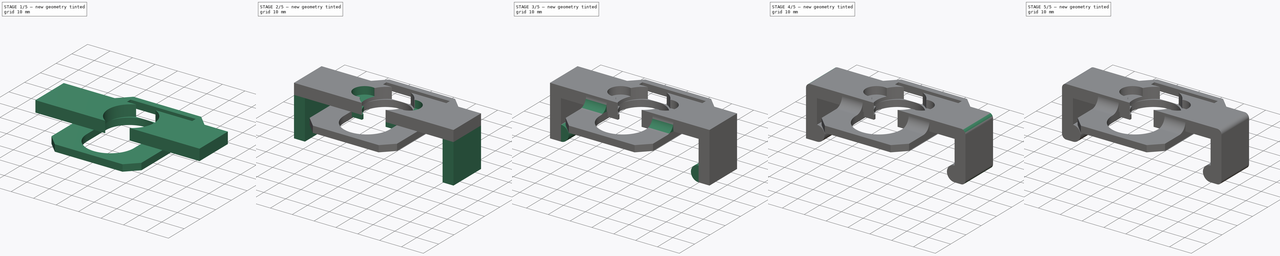
[diagram: build sequence overview — one tinted view per stage of 5, left to right]
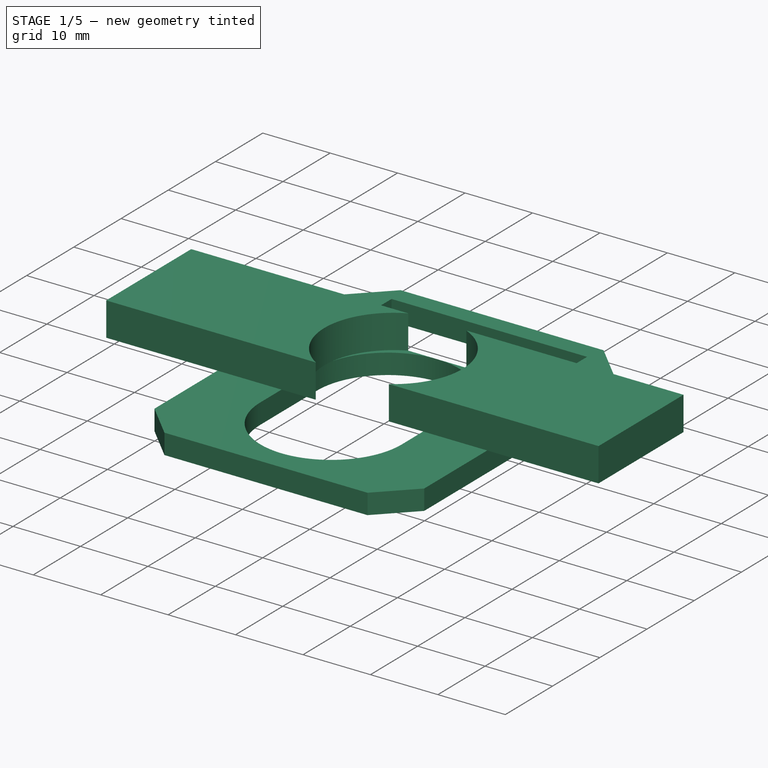
[diagram: stage 1 of 5 — iso view after this stage's code; geometry added in this stage tinted green]
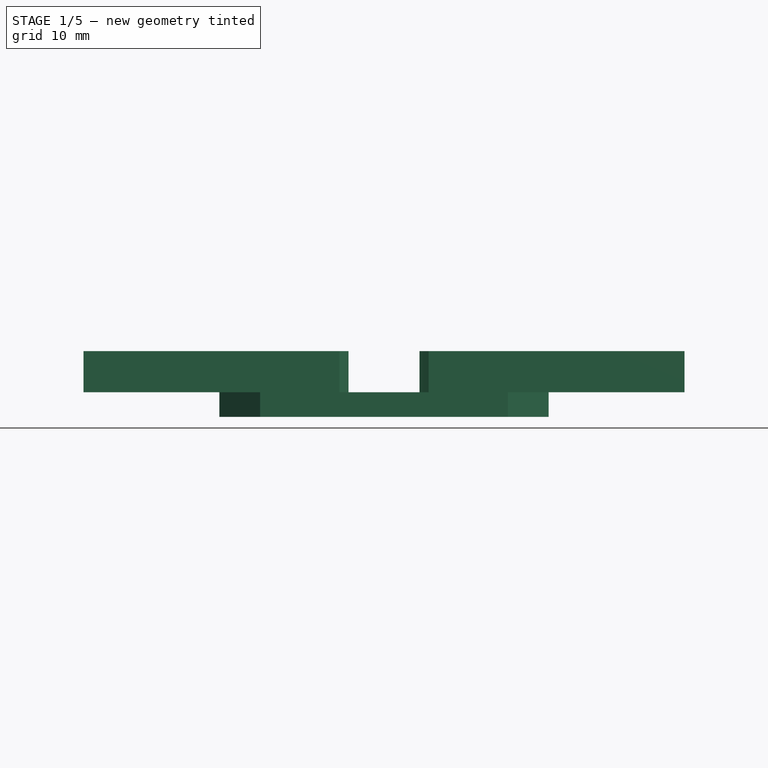
[diagram: stage 1 of 5 — front view after this stage's code; geometry added in this stage tinted green]
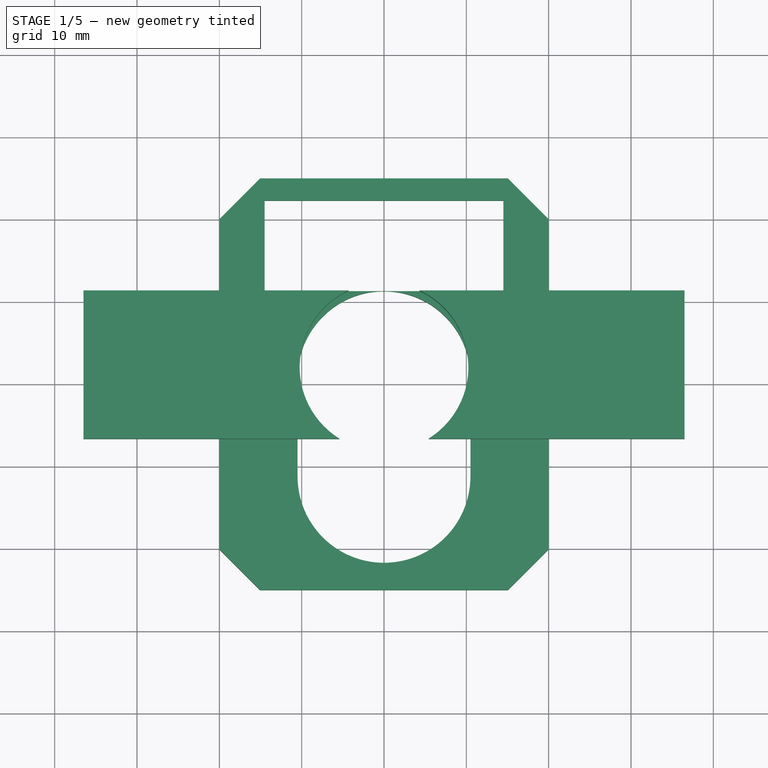
[diagram: stage 1 of 5 — top view after this stage's code; geometry added in this stage tinted green]
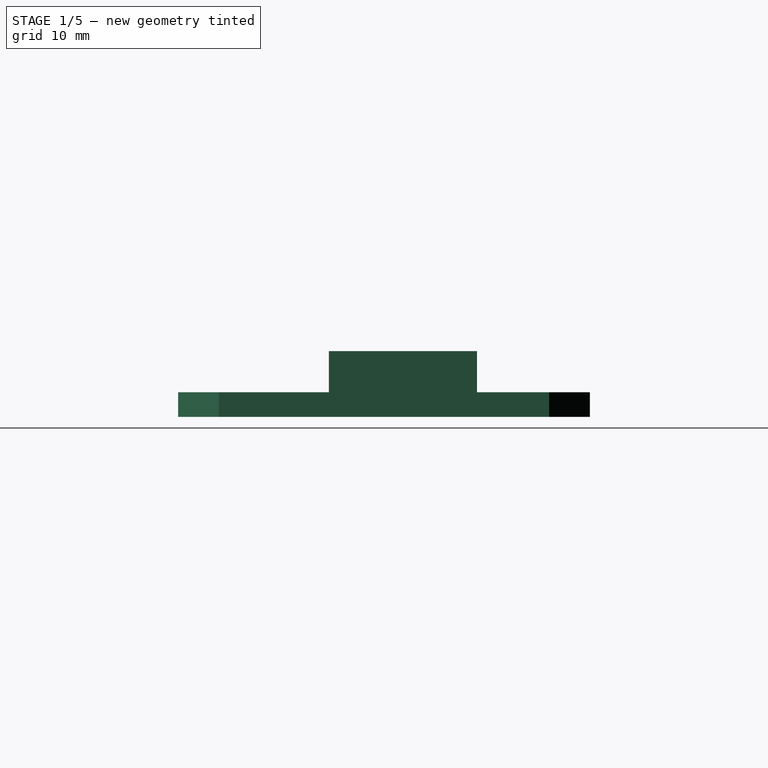
[diagram: stage 1 of 5 — right view after this stage's code; geometry added in this stage tinted green]
FCSTD DOCUMENT  (FreeCAD 0.20R29177 (Git))
Label: ti_lens
License: All rights reserved
LicenseURL: http://en.wikipedia.org/wiki/All_rights_reserved
objects: PartDesign::Fillet×8, Sketcher::SketchObject×7, PartDesign::Pad×5, PartDesign::Pocket×2, PartDesign::Body×1
note: 38 computed .brp shape members not serialized (recipe doc carries the construction recipe); baked Part::Feature solids carry a one-line shape summary decoded from their .brp

FEATURE [Sketcher::SketchObject] Sketch
  FullyConstrained = true
  MapMode = 5
  Support = -> [XY_Plane]
  sketch-geometry (8):
    g0: LineSegment StartX=-20 StartY=20.0503 StartZ=0 EndX=-15.0503 EndY=25 EndZ=0
    g1: LineSegment StartX=-15.0503 StartY=25 StartZ=0 EndX=15.0503 EndY=25 EndZ=0
    g2: LineSegment StartX=15.0503 StartY=25 StartZ=0 EndX=20 EndY=20.0503 EndZ=0
    g3: LineSegment StartX=20 StartY=20.0503 StartZ=0 EndX=20 EndY=-20.0503 EndZ=0
    g4: LineSegment StartX=20 StartY=-20.0503 StartZ=0 EndX=15.0503 EndY=-25 EndZ=0
    g5: LineSegment StartX=15.0503 StartY=-25 StartZ=0 EndX=-15.0503 EndY=-25 EndZ=0
    g6: LineSegment StartX=-15.0503 StartY=-25 StartZ=0 EndX=-20 EndY=-20.0503 EndZ=0
    g7: LineSegment StartX=-20 StartY=-20.0503 StartZ=0 EndX=-20 EndY=20.0503 EndZ=0
  constraints (22):
    c: Coincident(g0,g1)
    c: Horizontal(g1)
    c: Coincident(g1,g2)
    c: Coincident(g2,g3)
    c: Vertical(g3)
    c: Coincident(g3,g4)
    c: Coincident(g4,g5)
    c: Horizontal(g5)
    c: Coincident(g5,g6)
    c: Coincident(g6,g7)
    c: Coincident(g7,g0)
    c: Vertical(g7)
    c: Symmetric(g0,g2,g-2)
    c: Angle(g0) = 0.785398
    c: Equal(g0,g2)
    c: Equal(g0,g6)
    c: Equal(g0,g4)
    c: Angle(g6) = 2.35619
    c: Symmetric(g4,g1,g-1)
    c: DistanceX(g0,g2) = 40
    c: DistanceY(g4,g1) = 50
    c: Distance(g0) = 7
FEATURE [PartDesign::Pad] Pad
  Direction = (0,0,1)
  Length = 3
  Length2 = 10
  Profile = -> Sketch
  ReferenceAxis = -> Sketch [N_Axis]
  Type = 0
FEATURE [Sketcher::SketchObject] Sketch001
  ExternalGeometry = -> [Pad]
  FullyConstrained = true
  MapMode = 5
  Placement = pos=(0,0,3) rot=(0,0,1;0rad)
  Support = -> [Pad]
  sketch-geometry (8):
    g0: ArcOfCircle CenterX=0 CenterY=0.8 CenterZ=0 NormalX=0 NormalY=0 NormalZ=1 AngleXU=0 Radius=10.5 StartAngle=0 EndAngle=3.14159
    g1: ArcOfCircle CenterX=0 CenterY=-11.2 CenterZ=0 NormalX=0 NormalY=0 NormalZ=1 AngleXU=0 Radius=10.5 StartAngle=3.14159 EndAngle=6.28319
    g2: LineSegment StartX=-10.5 StartY=0.8 StartZ=0 EndX=-10.5 EndY=-11.2 EndZ=0
    g3: LineSegment StartX=10.5 StartY=-11.2 StartZ=0 EndX=10.5 EndY=0.8 EndZ=0
    g4: LineSegment StartX=-14.5 StartY=22.3 StartZ=0 EndX=14.5 EndY=22.3 EndZ=0
    g5: LineSegment StartX=14.5 StartY=22.3 StartZ=0 EndX=14.5 EndY=11.3 EndZ=0
    g6: LineSegment StartX=14.5 StartY=11.3 StartZ=0 EndX=-14.5 EndY=11.3 EndZ=0
    g7: LineSegment StartX=-14.5 StartY=11.3 StartZ=0 EndX=-14.5 EndY=22.3 EndZ=0
  constraints (21):
    c: Tangent(g0,g2) = -1.5708
    c: Tangent(g2,g1) = -1.5708
    c: Tangent(g1,g3) = -1.5708
    c: Tangent(g3,g0) = -1.5708
    c: Equal(g0,g1)
    c: PointOnObject(g0,g-2)
    c: PointOnObject(g1,g-2)
    c: DistanceX(g0,g0) = 21
    c: DistanceY(g1,g0) = 12
    c: DistanceY(g-3,g1) = 13.8
    c: Coincident(g4,g5)
    c: Coincident(g5,g6)
    c: Coincident(g6,g7)
    c: Coincident(g7,g4)
    c: Horizontal(g6)
    c: Vertical(g5)
    c: Vertical(g7)
    c: Symmetric(g4,g4,g-2)
    c: DistanceY(g5,g5) = 11
    c: Tangent(g0,g6)
    c: DistanceX(g4,g4) = 29
FEATURE [PartDesign::Pocket] Pocket
  BaseFeature = -> Pad
  Direction = (0,0,-1)
  Length = 3
  Length2 = 5
  Profile = -> Sketch001
  ReferenceAxis = -> Sketch001 [N_Axis]
  Type = 0
FEATURE [Sketcher::SketchObject] Sketch002
  ExternalGeometry = -> [Pocket]
  FullyConstrained = true
  MapMode = 5
  Placement = pos=(0,0,3) rot=(0,0,1;0rad)
  Support = -> [Pocket]
  sketch-geometry (8):
    g0: LineSegment StartX=4.30958 StartY=11.3 StartZ=0 EndX=36.5 EndY=11.3 EndZ=0
    g1: LineSegment StartX=36.5 StartY=11.3 StartZ=0 EndX=36.5 EndY=-6.7 EndZ=0
    g2: LineSegment StartX=36.5 StartY=-6.7 StartZ=0 EndX=5.41964 EndY=-6.7 EndZ=0
    g3: LineSegment StartX=-4.30958 StartY=11.3 StartZ=0 EndX=-36.5 EndY=11.3 EndZ=0
    g4: LineSegment StartX=-36.5 StartY=11.3 StartZ=0 EndX=-36.5 EndY=-6.7 EndZ=0
    g5: LineSegment StartX=-36.5 StartY=-6.7 StartZ=0 EndX=-5.41964 EndY=-6.7 EndZ=0
    g6: ArcOfCircle CenterX=0 CenterY=2 CenterZ=0 NormalX=0 NormalY=0 NormalZ=1 AngleXU=0 Radius=10.25 StartAngle=5.26951 EndAngle=7.42004
    g7: ArcOfCircle CenterX=0 CenterY=2 CenterZ=0 NormalX=0 NormalY=0 NormalZ=1 AngleXU=0 Radius=10.25 StartAngle=2.00473 EndAngle=4.15527
  constraints (24):
    c: PointOnObject(g0,g-4)
    c: Horizontal(g0)
    c: Coincident(g0,g1)
    c: Vertical(g1)
    c: Coincident(g1,g2)
    c: Horizontal(g2)
    c: PointOnObject(g3,g-4)
    c: Coincident(g3,g4)
    c: Vertical(g4)
    c: Coincident(g4,g5)
    c: Horizontal(g5)
    c: Symmetric(g3,g0,g-2)
    c: Equal(g1,g4)
    c: DistanceX(g3,g0) = 73
    c: DistanceY(g1,g1) = 18
    c: PointOnObject(g6,g-2)
    c: Coincident(g6,g0)
    c: Coincident(g6,g2)
    c: Coincident(g7,g6)
    c: Coincident(g7,g3)
    c: Coincident(g7,g5)
    c: DistanceY(g-3,g6) = 27
    c: Equal(g6,g7)
    c: Diameter(g6) = 20.5
FEATURE [PartDesign::Pad] Pad001
  BaseFeature = -> Pocket
  Direction = (0,0,1)
  Length = 5
  Length2 = 10
  Profile = -> Sketch002
  ReferenceAxis = -> Sketch002 [N_Axis]
  Type = 0
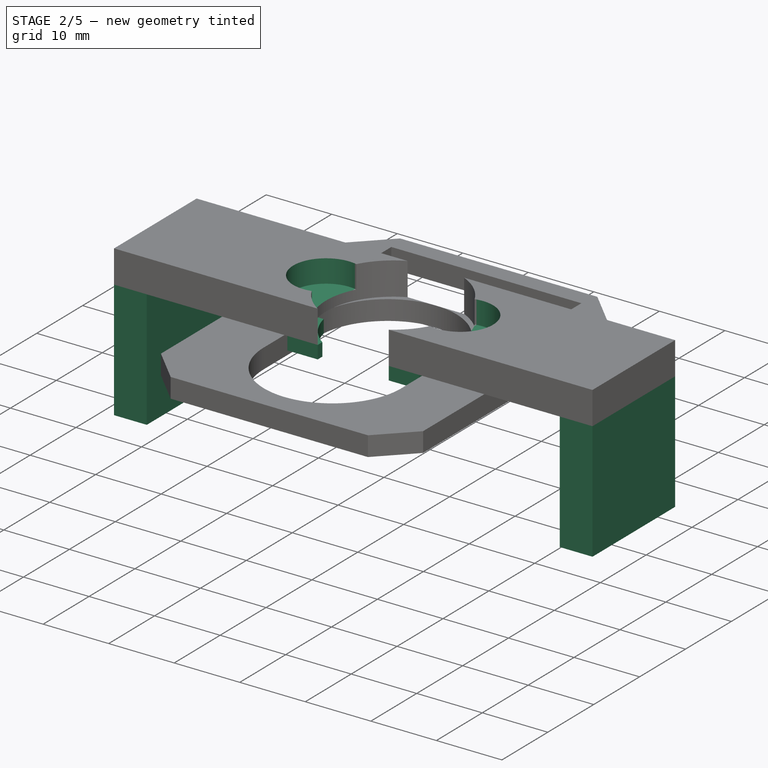
[diagram: stage 2 of 5 — iso view after this stage's code; geometry added in this stage tinted green]
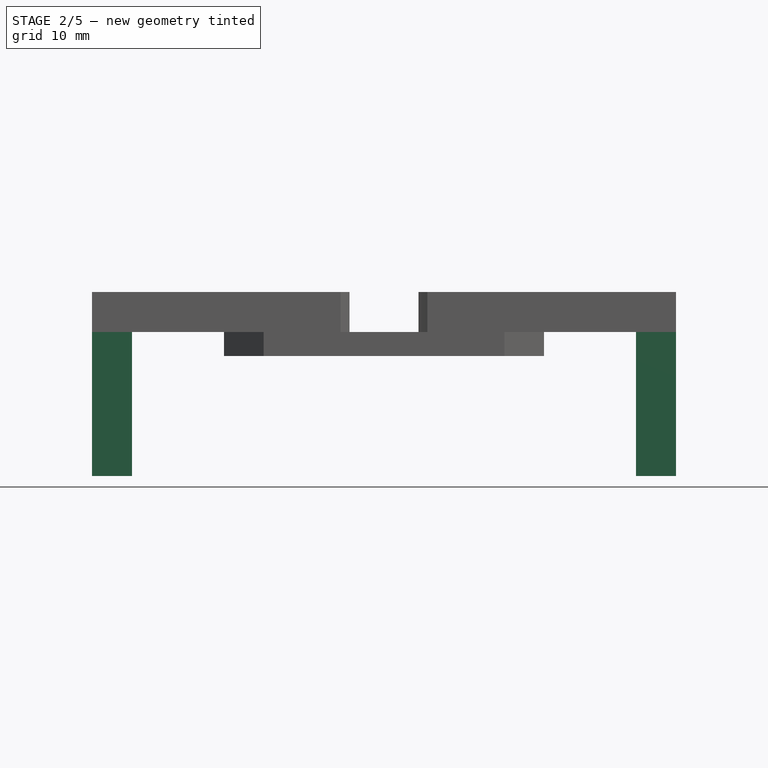
[diagram: stage 2 of 5 — front view after this stage's code; geometry added in this stage tinted green]
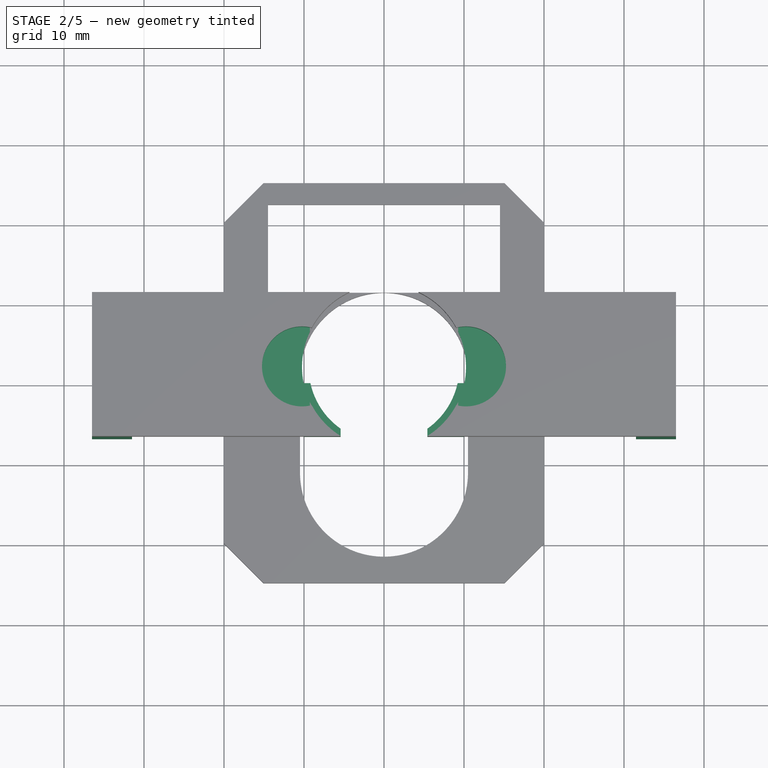
[diagram: stage 2 of 5 — top view after this stage's code; geometry added in this stage tinted green]
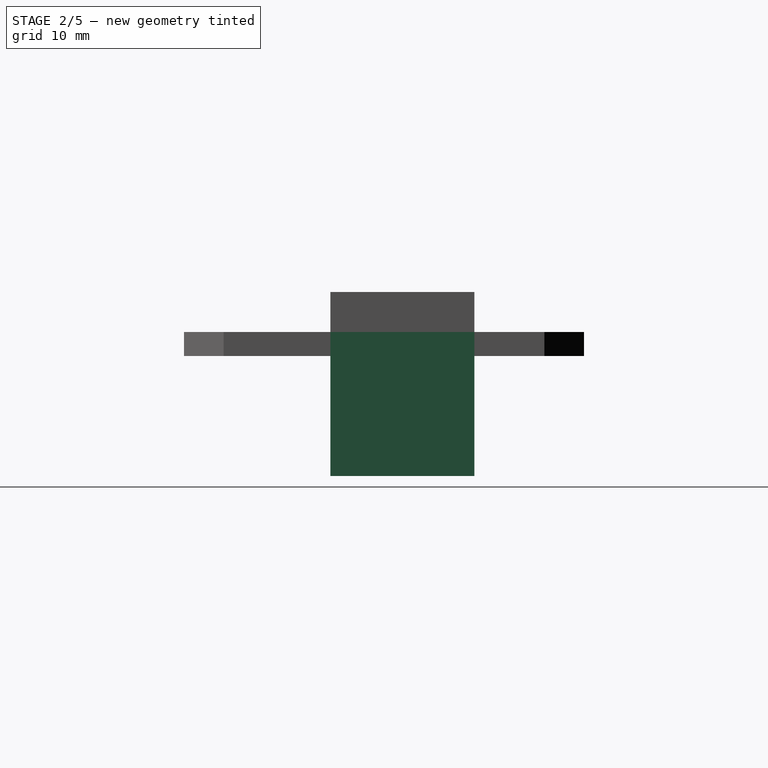
[diagram: stage 2 of 5 — right view after this stage's code; geometry added in this stage tinted green]
FEATURE [Sketcher::SketchObject] Sketch003
  ExternalGeometry = -> [Pad001]
  FullyConstrained = true
  MapMode = 5
  Placement = pos=(0,0,3) rot=(1,0,0;3.14159rad)
  Support = -> [Pad001]
  sketch-geometry (8):
    g0: LineSegment StartX=-36.5 StartY=6.7 StartZ=0 EndX=-31.5 EndY=6.7 EndZ=0
    g1: LineSegment StartX=-31.5 StartY=6.7 StartZ=0 EndX=-31.5 EndY=-11.3 EndZ=0
    g2: LineSegment StartX=-31.5 StartY=-11.3 StartZ=0 EndX=-36.5 EndY=-11.3 EndZ=0
    g3: LineSegment StartX=-36.5 StartY=-11.3 StartZ=0 EndX=-36.5 EndY=6.7 EndZ=0
    g4: LineSegment StartX=36.5 StartY=6.7 StartZ=0 EndX=31.5 EndY=6.7 EndZ=0
    g5: LineSegment StartX=31.5 StartY=6.7 StartZ=0 EndX=31.5 EndY=-11.3 EndZ=0
    g6: LineSegment StartX=31.5 StartY=-11.3 StartZ=0 EndX=36.5 EndY=-11.3 EndZ=0
    g7: LineSegment StartX=36.5 StartY=-11.3 StartZ=0 EndX=36.5 EndY=6.7 EndZ=0
  constraints (22):
    c: Coincident(g0,g1)
    c: Coincident(g1,g2)
    c: Coincident(g2,g3)
    c: Coincident(g3,g0)
    c: Horizontal(g0)
    c: Horizontal(g2)
    c: Vertical(g1)
    c: Vertical(g3)
    c: Coincident(g0,g-3)
    c: PointOnObject(g1,g-5)
    c: Coincident(g4,g5)
    c: Coincident(g5,g6)
    c: Coincident(g6,g7)
    c: Coincident(g7,g4)
    c: Horizontal(g4)
    c: Horizontal(g6)
    c: Vertical(g5)
    c: Vertical(g7)
    c: Coincident(g4,g-4)
    c: PointOnObject(g5,g-6)
    c: DistanceX(g4,g4) = 5
    c: Equal(g0,g4)
FEATURE [PartDesign::Pad] Pad002
  BaseFeature = -> Pad001
  Direction = (0,0,-1)
  Length = 18
  Length2 = 10
  Profile = -> Sketch003
  ReferenceAxis = -> Sketch003 [N_Axis]
  Type = 0
FEATURE [Sketcher::SketchObject] Sketch004
  ExternalGeometry = -> [Pad002]
  FullyConstrained = true
  MapMode = 5
  Placement = pos=(0,0,3) rot=(1,0,0;3.14159rad)
  Support = -> [Pad002]
  sketch-geometry (10):
    g0: ArcOfCircle CenterX=0 CenterY=-2 CenterZ=0 NormalX=0 NormalY=0 NormalZ=1 AngleXU=0 Radius=9.41608 StartAngle=0.214033 EndAngle=0.957492
    g1: ArcOfCircle CenterX=0 CenterY=-2 CenterZ=0 NormalX=0 NormalY=0 NormalZ=1 AngleXU=0 Radius=9.41608 StartAngle=2.1841 EndAngle=2.92756
    g2: LineSegment StartX=5.41964 StartY=5.7 StartZ=0 EndX=5.41964 EndY=6.7 EndZ=0
    g3: LineSegment StartX=-5.41964 StartY=5.7 StartZ=0 EndX=-5.41964 EndY=6.7 EndZ=0
    g4: LineSegment StartX=5.41964 StartY=6.7 StartZ=0 EndX=10.053 EndY=6.7 EndZ=0
    g5: LineSegment StartX=10.053 StartY=0 StartZ=0 EndX=10.053 EndY=6.7 EndZ=0
    g6: LineSegment StartX=9.20122 StartY=0 StartZ=0 EndX=10.053 EndY=0 EndZ=0
    g7: LineSegment StartX=-5.41964 StartY=6.7 StartZ=0 EndX=-10.053 EndY=6.7 EndZ=0
    g8: LineSegment StartX=-10.053 StartY=6.7 StartZ=0 EndX=-10.053 EndY=-9e-16 EndZ=0
    g9: LineSegment StartX=-10.053 StartY=-9e-16 StartZ=0 EndX=-9.20122 EndY=-9e-16 EndZ=0
  constraints (27):
    c: Coincident(g0,g-3)
    c: PointOnObject(g0,g-1)
    c: Coincident(g1,g0)
    c: PointOnObject(g1,g-1)
    c: Symmetric(g0,g1,g-2)
    c: DistanceY(g0,g-3) = 1
    c: Vertical(g0,g-3)
    c: Coincident(g2,g0)
    c: Coincident(g2,g-3)
    c: Coincident(g3,g1)
    c: Coincident(g3,g-4)
    c: Coincident(g4,g2)
    c: Horizontal(g4)
    c: PointOnObject(g5,g-3)
    c: Coincident(g5,g4)
    c: Vertical(g5)
    c: Coincident(g6,g0)
    c: Coincident(g6,g5)
    c: Horizontal(g6)
    c: Coincident(g7,g3)
    c: Horizontal(g7)
    c: Coincident(g8,g7)
    c: PointOnObject(g8,g-4)
    c: Vertical(g8)
    c: Coincident(g9,g8)
    c: Coincident(g9,g1)
    c: Horizontal(g9)
FEATURE [PartDesign::Pad] Pad003
  BaseFeature = -> Pad002
  Direction = (0,0,-1)
  Length = 2
  Length2 = 10
  Profile = -> Sketch004
  ReferenceAxis = -> Sketch004 [N_Axis]
  Type = 0
FEATURE [Sketcher::SketchObject] Sketch005
  ExternalGeometry = -> [Pad003]
  FullyConstrained = true
  MapMode = 5
  Placement = pos=(0,0,8) rot=(0,0,1;0rad)
  Support = -> [Pad003]
  sketch-geometry (4):
    g0: ArcOfCircle CenterX=-10.25 CenterY=2 CenterZ=0 NormalX=0 NormalY=0 NormalZ=1 AngleXU=0 Radius=5 StartAngle=1.32441 EndAngle=4.95878
    g1: ArcOfCircle CenterX=10.25 CenterY=2 CenterZ=0 NormalX=0 NormalY=0 NormalZ=1 AngleXU=0 Radius=5 StartAngle=4.466 EndAngle=8.10037
    g2: ArcOfCircle CenterX=0 CenterY=2 CenterZ=0 NormalX=0 NormalY=0 NormalZ=1 AngleXU=0 Radius=10.25 StartAngle=5.79041 EndAngle=6.77596
    g3: ArcOfCircle CenterX=0 CenterY=2 CenterZ=0 NormalX=0 NormalY=0 NormalZ=1 AngleXU=0 Radius=10.25 StartAngle=2.64882 EndAngle=3.63437
  constraints (14):
    c: PointOnObject(g0,g-4)
    c: PointOnObject(g1,g-3)
    c: PointOnObject(g1,g-3)
    c: Horizontal(g1,g-4)
    c: Coincident(g2,g1)
    c: Coincident(g2,g1)
    c: Equal(g0,g1)
    c: Radius(g1) = 5
    c: PointOnObject(g0,g-4)
    c: Horizontal(g0,g-4)
    c: Coincident(g3,g-4)
    c: Coincident(g3,g0)
    c: Coincident(g3,g0)
    c: Coincident(g2,g3)
FEATURE [PartDesign::Pocket] Pocket001
  BaseFeature = -> Pad003
  Direction = (0,0,-1)
  Length = 3.5
  Length2 = 5
  Profile = -> Sketch005
  ReferenceAxis = -> Sketch005 [N_Axis]
  Type = 0
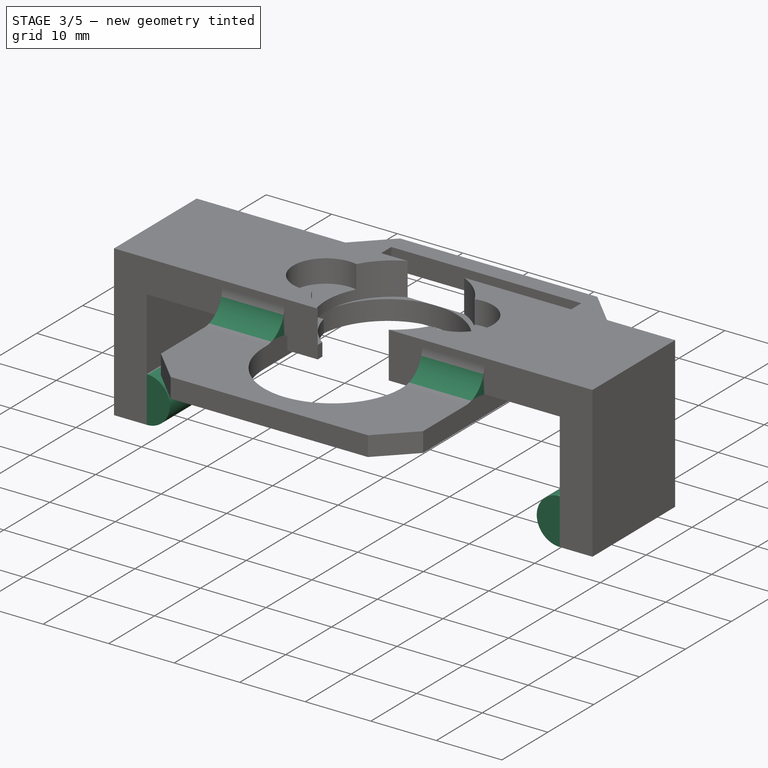
[diagram: stage 3 of 5 — iso view after this stage's code; geometry added in this stage tinted green]
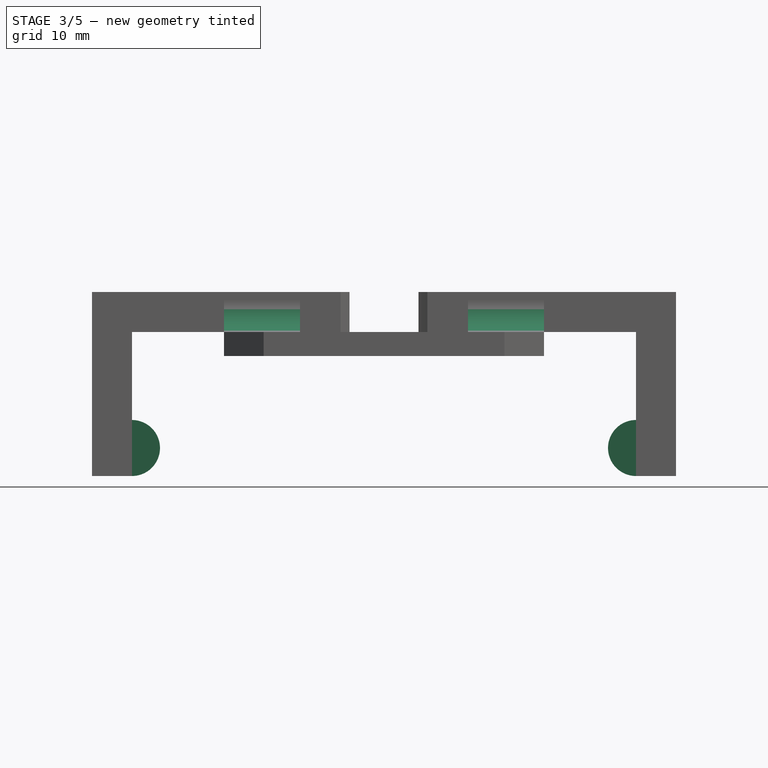
[diagram: stage 3 of 5 — front view after this stage's code; geometry added in this stage tinted green]
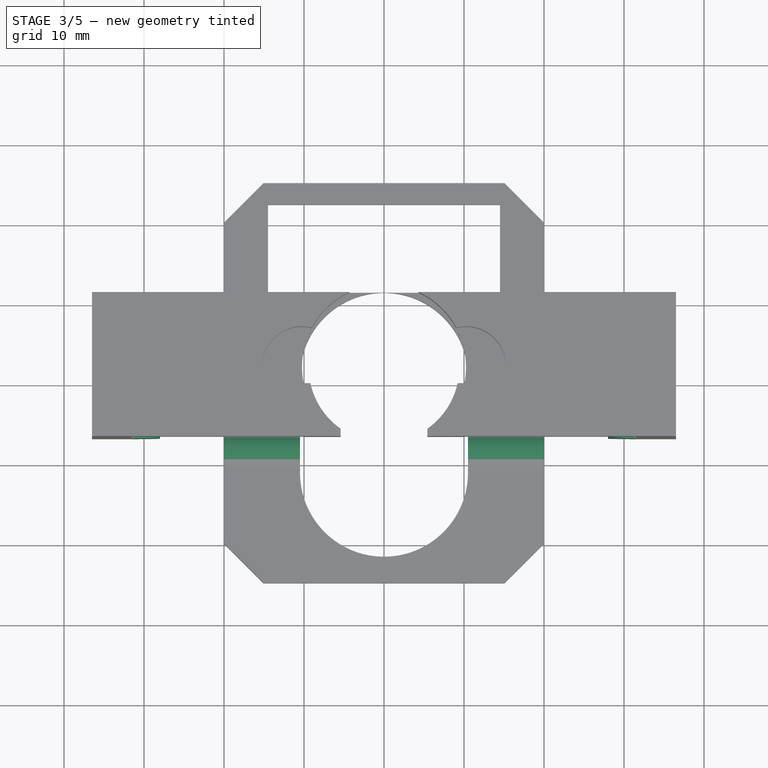
[diagram: stage 3 of 5 — top view after this stage's code; geometry added in this stage tinted green]
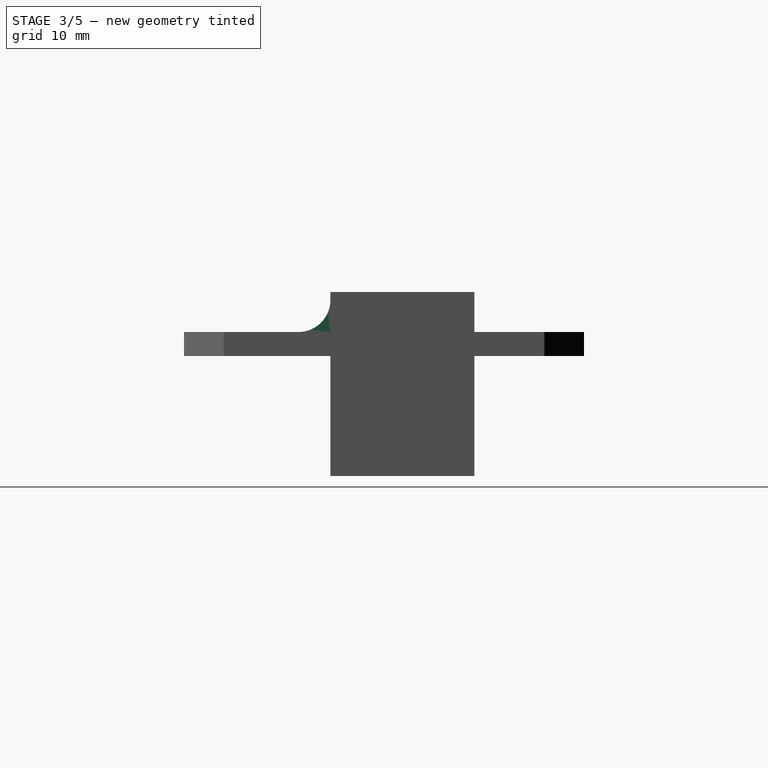
[diagram: stage 3 of 5 — right view after this stage's code; geometry added in this stage tinted green]
FEATURE [Sketcher::SketchObject] Sketch006
  ExternalGeometry = -> [Pocket001]
  FullyConstrained = true
  MapMode = 5
  Placement = pos=(0,11.3,0) rot=(0,0.707107,0.707107;3.14159rad)
  Support = -> [Pocket001]
  sketch-geometry (6):
    g0: ArcOfCircle CenterX=-31.5 CenterY=-11.5 CenterZ=0 NormalX=0 NormalY=0 NormalZ=1 AngleXU=0 Radius=3.5 StartAngle=4.71239 EndAngle=7.85398
    g1: ArcOfCircle CenterX=31.5 CenterY=-11.5 CenterZ=0 NormalX=0 NormalY=0 NormalZ=1 AngleXU=0 Radius=3.5 StartAngle=1.5708 EndAngle=4.71239
    g2: LineSegment StartX=-31.5 StartY=-15 StartZ=0 EndX=-33.5 EndY=-15 EndZ=0
    g3: LineSegment StartX=-33.5 StartY=-15 StartZ=0 EndX=-31.5 EndY=-8 EndZ=0
    g4: LineSegment StartX=31.5 StartY=-15 StartZ=0 EndX=33.5 EndY=-15 EndZ=0
    g5: LineSegment StartX=33.5 StartY=-15 StartZ=0 EndX=31.5 EndY=-8 EndZ=0
  constraints (17):
    c: PointOnObject(g0,g-5)
    c: PointOnObject(g0,g-5)
    c: PointOnObject(g1,g-6)
    c: PointOnObject(g1,g-6)
    c: PointOnObject(g1,g-6)
    c: Horizontal(g0,g1)
    c: Equal(g0,g1)
    c: Radius(g0) = 3.5
    c: Coincident(g0,g-5)
    c: Tangent(g0,g2) = 1.5708
    c: Coincident(g2,g3)
    c: Coincident(g3,g0)
    c: Tangent(g1,g4) = -1.5708
    c: Coincident(g4,g5)
    c: Coincident(g5,g1)
    c: Equal(g2,g4)
    c: DistanceX(g2,g2) = 2
FEATURE [PartDesign::Pad] Pad004
  BaseFeature = -> Pocket001
  Direction = (0,1,2e-16)
  Length = 18
  Length2 = 10
  Profile = -> Sketch006
  ReferenceAxis = -> Sketch006 [N_Axis]
  Reversed = true
  Type = 0
FEATURE [PartDesign::Fillet] Fillet
  Base = -> Pad004 [Edge39]
  BaseFeature = -> Pad004
  Radius = 4
  SupportTransform = false
  UseAllEdges = false
FEATURE [PartDesign::Fillet] Fillet001
  Base = -> Fillet [Edge7]
  BaseFeature = -> Fillet
  Radius = 4
  SupportTransform = false
  UseAllEdges = false
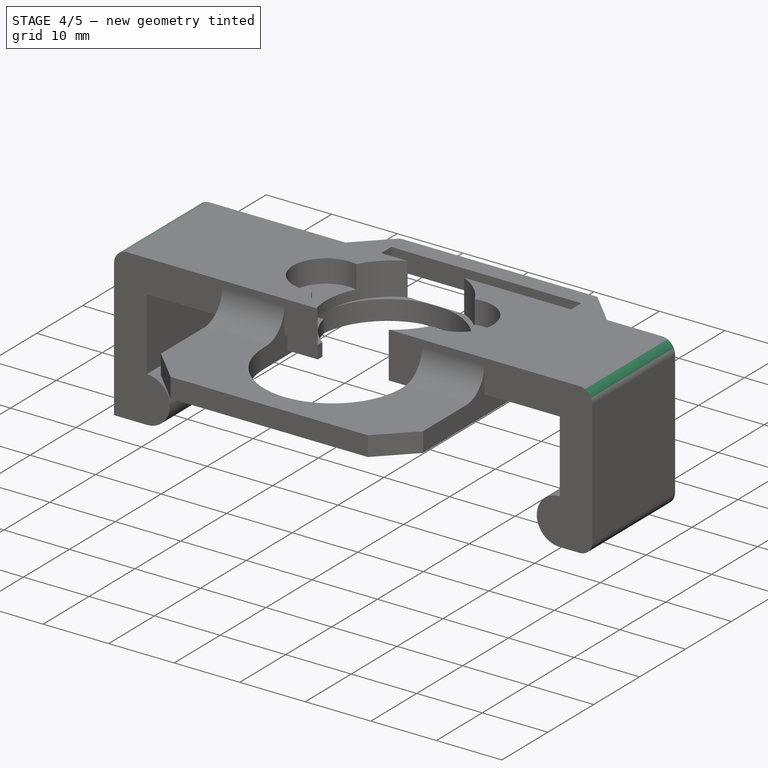
[diagram: stage 4 of 5 — iso view after this stage's code; geometry added in this stage tinted green]
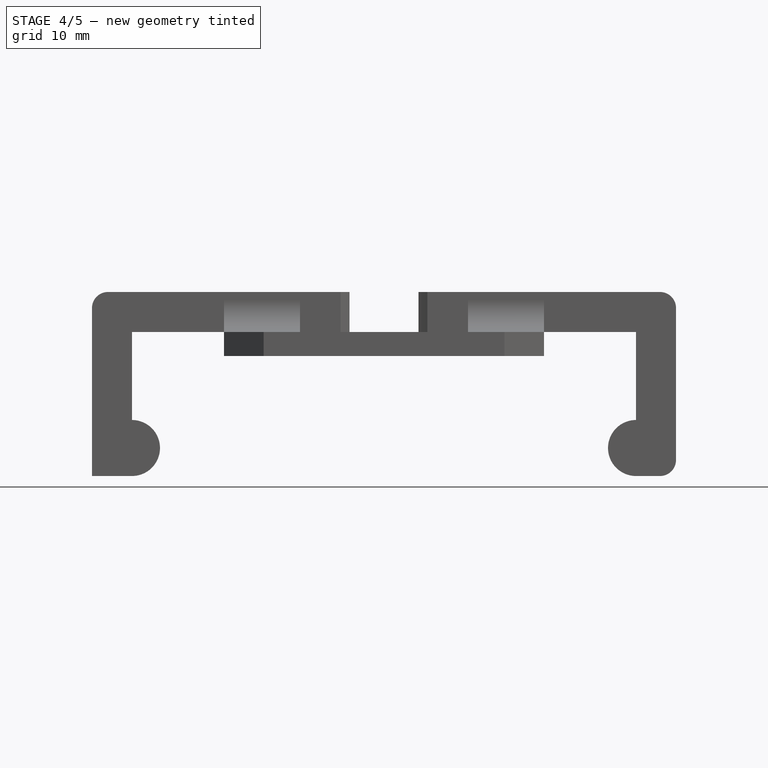
[diagram: stage 4 of 5 — front view after this stage's code; geometry added in this stage tinted green]
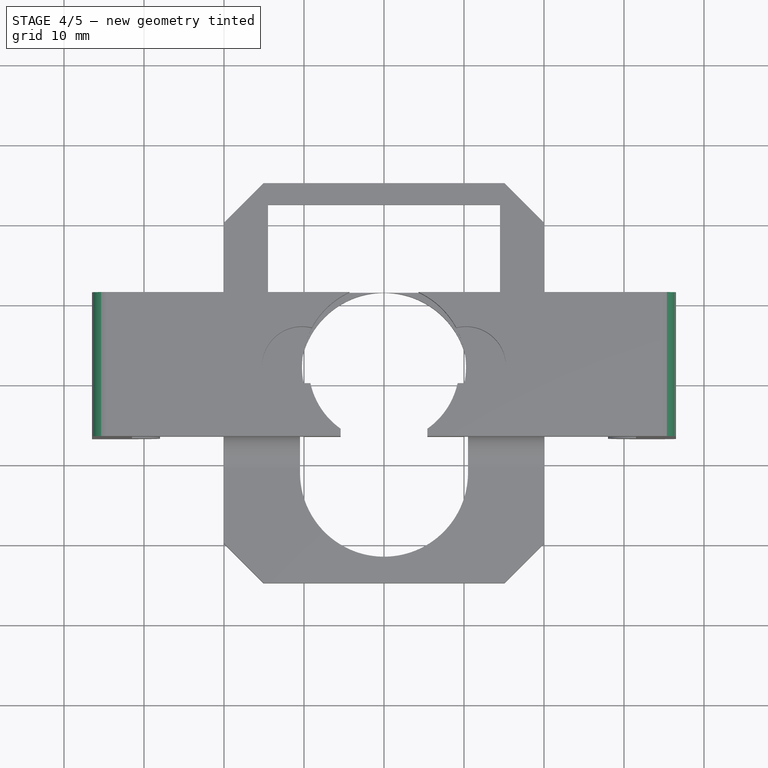
[diagram: stage 4 of 5 — top view after this stage's code; geometry added in this stage tinted green]
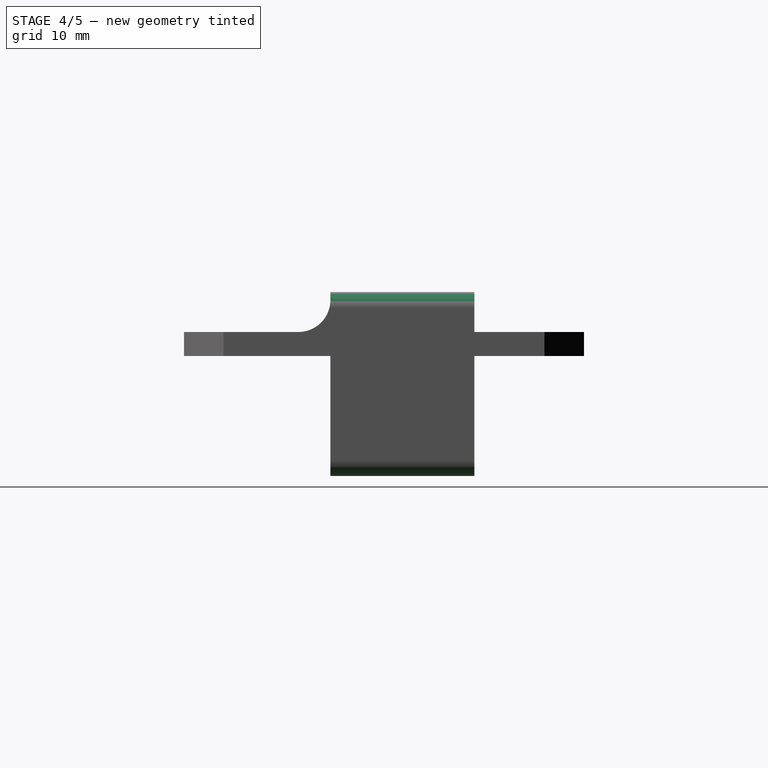
[diagram: stage 4 of 5 — right view after this stage's code; geometry added in this stage tinted green]
FEATURE [PartDesign::Fillet] Fillet002
  Base = -> Fillet001 [Edge130]
  BaseFeature = -> Fillet001
  Radius = 2
  SupportTransform = false
  UseAllEdges = false
FEATURE [PartDesign::Fillet] Fillet003
  Base = -> Fillet002 [Edge158]
  BaseFeature = -> Fillet002
  Radius = 2
  SupportTransform = false
  UseAllEdges = false
FEATURE [PartDesign::Fillet] Fillet004
  Base = -> Fillet003 [Edge177]
  BaseFeature = -> Fillet003
  Radius = 2
  SupportTransform = false
  UseAllEdges = false
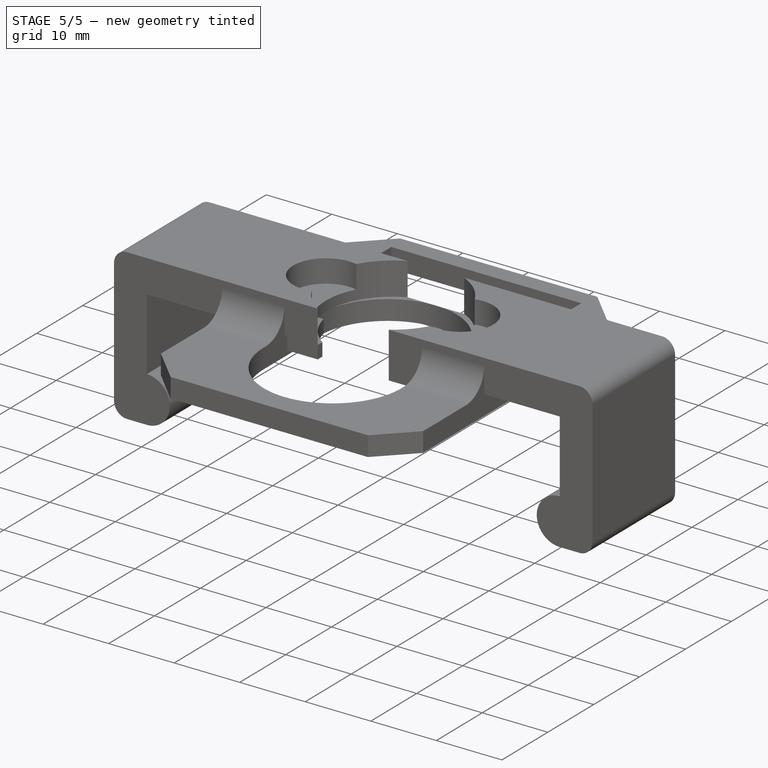
[diagram: stage 5 of 5 — iso view after this stage's code; geometry added in this stage tinted green]
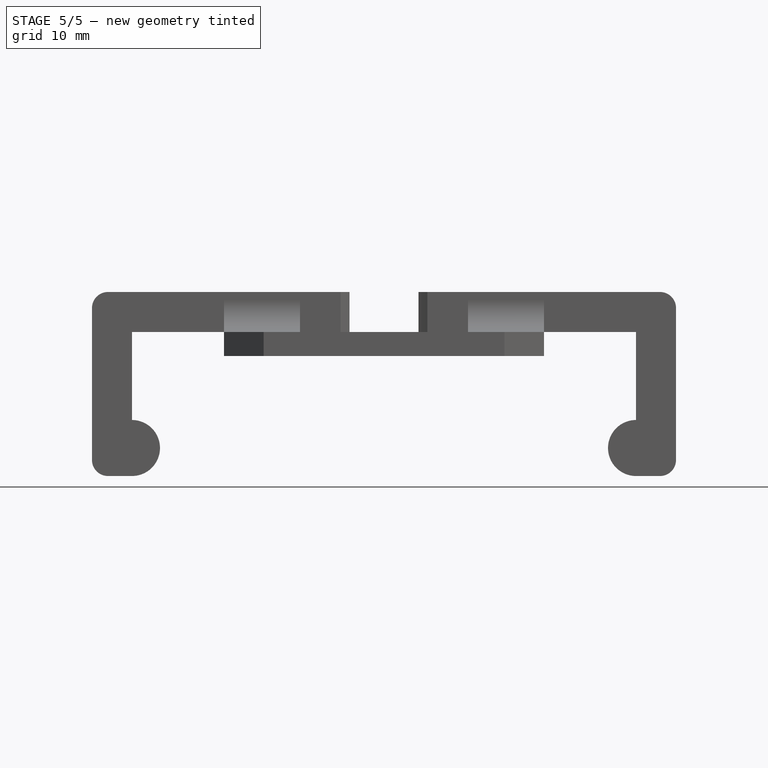
[diagram: stage 5 of 5 — front view after this stage's code; geometry added in this stage tinted green]
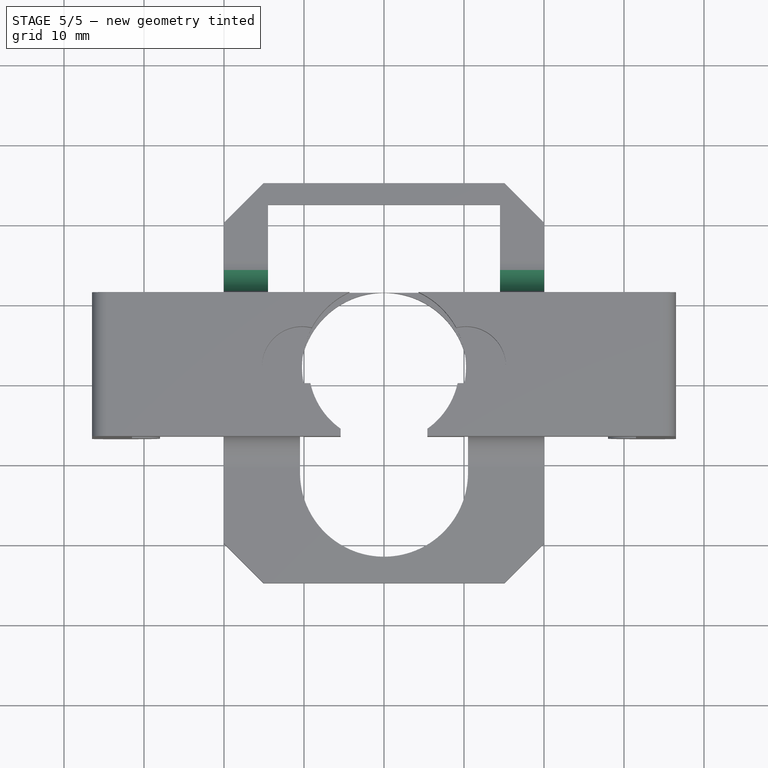
[diagram: stage 5 of 5 — top view after this stage's code; geometry added in this stage tinted green]
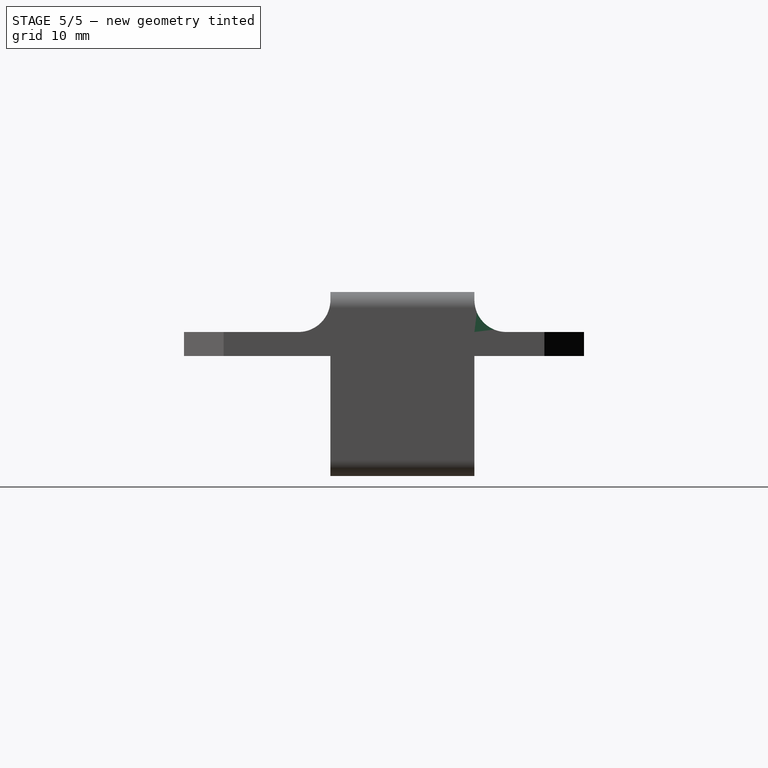
[diagram: stage 5 of 5 — right view after this stage's code; geometry added in this stage tinted green]
FEATURE [PartDesign::Fillet] Fillet005
  Base = -> Fillet004 [Edge173]
  BaseFeature = -> Fillet004
  Radius = 2
  SupportTransform = false
  UseAllEdges = false
FEATURE [PartDesign::Fillet] Fillet006
  Base = -> Fillet005 [Edge17]
  BaseFeature = -> Fillet005
  Radius = 4
  SupportTransform = false
  UseAllEdges = false
FEATURE [PartDesign::Fillet] Fillet007
  Base = -> Fillet006 [Edge56]
  BaseFeature = -> Fillet006
  Radius = 4
  SupportTransform = false
  UseAllEdges = false
FEATURE [PartDesign::Body] Body
  Group = -> [Sketch,Pad,Sketch001,Pocket,Sketch002,Pad001,Sketch003,Pad002,Sketch004,Pad003,Sketch005,Pocket001,Sketch006,Pad004,Fillet,Fillet001,Fillet002,Fillet003,Fillet004,Fillet005,Fillet006,Fillet007]
  Origin = -> Origin
  Tip = -> Fillet007
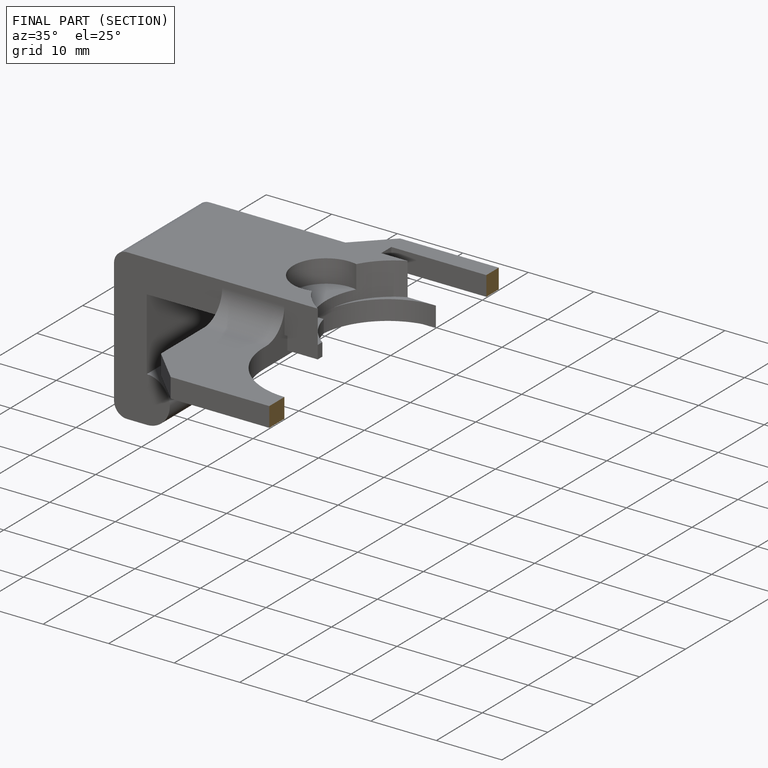
[diagram: finished part — half-section view (interior)]
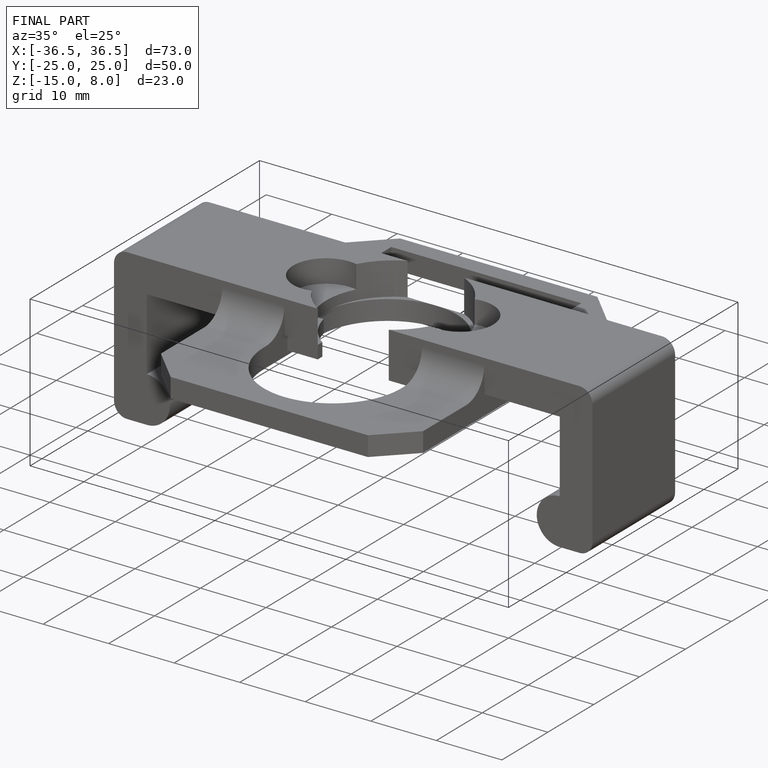
[diagram: finished part — iso view with bounding-box wireframe]
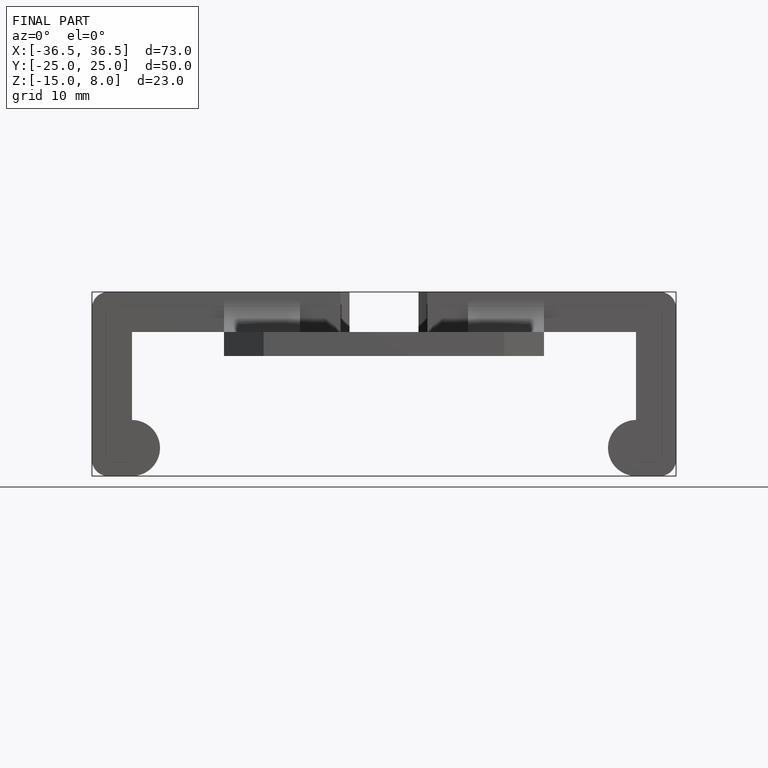
[diagram: finished part — front view with bounding-box wireframe]
